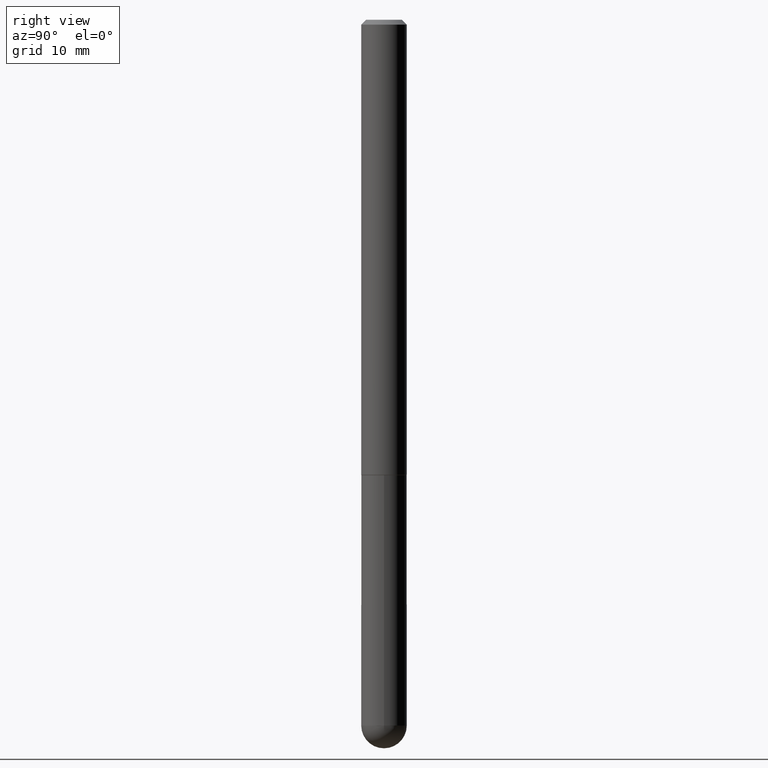
[diagram: clean part render]
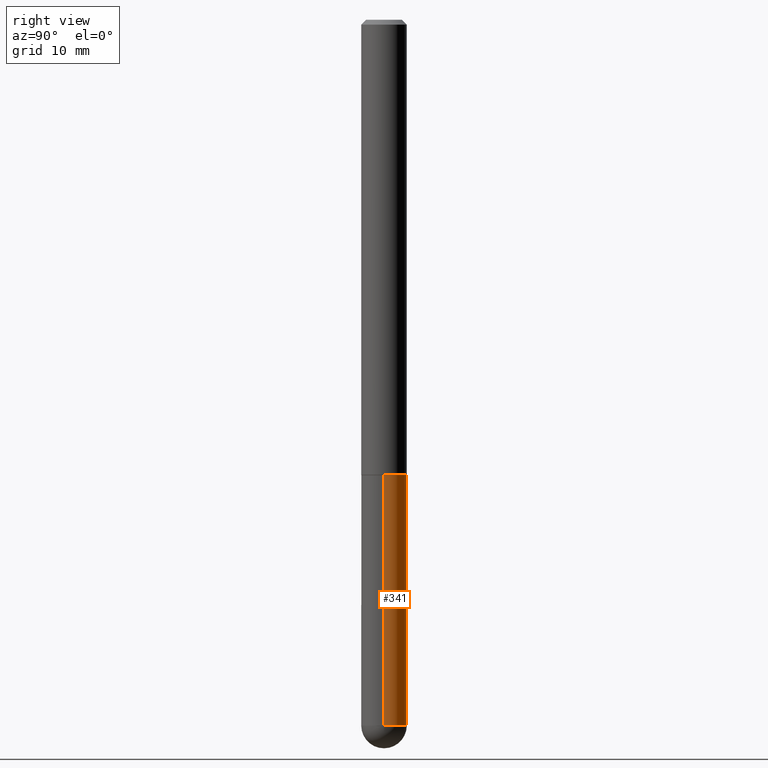
[diagram: same view with one face highlighted and labeled with its STEP entity id]
A machine part, right view. The second image highlights one B-rep face of the part: STEP entity #341.
In plain terms, the highlighted cylindrical surface (edge-blend (fillet) strip) has radius 2.3812 mm, axis along (-0, 0, 1).
Its self-contained STEP definition (entity closure, byte-faithful):
#12 = VERTEX_POINT ( 'NONE', #243 ) ;
#14 = ORIENTED_EDGE ( 'NONE', *, *, #283, .T. ) ;
#19 = LINE ( 'NONE', #112, #249 ) ;
#22 = EDGE_CURVE ( 'NONE', #77, #136, #345, .T. ) ;
#60 = DIRECTION ( 'NONE',  ( -2.445468806185136877E-29, 3.491481338843145188E-15, 1.000000000000000000 ) ) ;
#63 = LINE ( 'NONE', #379, #207 ) ;
#77 = VERTEX_POINT ( 'NONE', #364 ) ;
#95 = ORIENTED_EDGE ( 'NONE', *, *, #298, .T. ) ;
#98 = CARTESIAN_POINT ( 'NONE',  ( 7.107143717975553234E-29, -1.014711764101289221E-14, -2.906250000000000000 ) ) ;
#112 = CARTESIAN_POINT ( 'NONE',  ( -0.09374999999999998612, 6.661338147750938256E-16, -4.611501647113973295E-30 ) ) ;
#114 = CARTESIAN_POINT ( 'NONE',  ( -0.09375000000000001388, -7.680688760896801533E-15, -1.875000000000000000 ) ) ;
#115 = EDGE_CURVE ( 'NONE', #326, #136, #19, .T. ) ;
#135 = CARTESIAN_POINT ( 'NONE',  ( 7.107143717975553234E-29, -1.014711764101289221E-14, -2.906250000000000000 ) ) ;
#136 = VERTEX_POINT ( 'NONE', #114 ) ;
#140 = ORIENTED_EDGE ( 'NONE', *, *, #115, .T. ) ;
#142 = AXIS2_PLACEMENT_3D ( 'NONE', #135, #161, #385 ) ;
#150 = DIRECTION ( 'NONE',  ( -2.445468806185136877E-29, 3.491481338843145188E-15, 1.000000000000000000 ) ) ;
#157 = AXIS2_PLACEMENT_3D ( 'NONE', #351, #285, #294 ) ;
#161 = DIRECTION ( 'NONE',  ( -2.445468806185136597E-29, 3.491481338843145583E-15, 1.000000000000000000 ) ) ;
#166 = EDGE_CURVE ( 'NONE', #322, #77, #63, .T. ) ;
#172 = ORIENTED_EDGE ( 'NONE', *, *, #166, .F. ) ;
#178 = DIRECTION ( 'NONE',  ( -2.445468806185136597E-29, 3.491481338843145583E-15, 1.000000000000000000 ) ) ;
#199 = ORIENTED_EDGE ( 'NONE', *, *, #22, .F. ) ;
#203 = DIRECTION ( 'NONE',  ( -2.445468806185136597E-29, 3.491481338843145583E-15, 1.000000000000000000 ) ) ;
#207 = VECTOR ( 'NONE', #60, 39.37007874015748143 ) ;
#216 = CARTESIAN_POINT ( 'NONE',  ( 4.585254011597131119E-29, -6.546527510330898707E-15, -1.875000000000000000 ) ) ;
#225 = FACE_OUTER_BOUND ( 'NONE', #295, .T. ) ;
#230 = DIRECTION ( 'NONE',  ( 1.000000000000000000, -6.982962677686263555E-15, 0.000000000000000000 ) ) ;
#243 = CARTESIAN_POINT ( 'NONE',  ( 6.546527510331577127E-16, 0.09374999999998974431, -2.906250000000000888 ) ) ;
#249 = VECTOR ( 'NONE', #150, 39.37007874015748143 ) ;
#283 = EDGE_CURVE ( 'NONE', #12, #326, #383, .T. ) ;
#285 = DIRECTION ( 'NONE',  ( -2.445468806185136597E-29, 3.491481338843145583E-15, 1.000000000000000000 ) ) ;
#290 = CYLINDRICAL_SURFACE ( 'NONE', #157, 0.09374999999999998612 ) ;
#294 = DIRECTION ( 'NONE',  ( 1.000000000000000000, -6.982962677686266711E-15, 4.876176775795935793E-29 ) ) ;
#295 = EDGE_LOOP ( 'NONE', ( #14, #140, #199, #172, #95 ) ) ;
#298 = EDGE_CURVE ( 'NONE', #322, #12, #376, .T. ) ;
#307 = DIRECTION ( 'NONE',  ( 1.000000000000000000, -6.982962677686261189E-15, 0.000000000000000000 ) ) ;
#314 = AXIS2_PLACEMENT_3D ( 'NONE', #216, #178, #307 ) ;
#318 = CARTESIAN_POINT ( 'NONE',  ( 0.09374999999999998612, -9.001475326704983750E-15, -2.906250000000000000 ) ) ;
#322 = VERTEX_POINT ( 'NONE', #318 ) ;
#326 = VERTEX_POINT ( 'NONE', #387 ) ;
#341 = ADVANCED_FACE ( 'NONE', ( #225 ), #290, .T. ) ;
#345 = CIRCLE ( 'NONE', #314, 0.09375000000000001388 ) ;
#351 = CARTESIAN_POINT ( 'NONE',  ( 0.000000000000000000, 0.000000000000000000, 0.000000000000000000 ) ) ;
#364 = CARTESIAN_POINT ( 'NONE',  ( 0.09375000000000001388, -7.201180261363985422E-15, -1.875000000000000000 ) ) ;
#376 = CIRCLE ( 'NONE', #407, 0.09374999999999998612 ) ;
#379 = CARTESIAN_POINT ( 'NONE',  ( 0.09374999999999998612, -6.546527510330874055E-16, 4.571415727308689105E-30 ) ) ;
#383 = CIRCLE ( 'NONE', #142, 0.09374999999999998612 ) ;
#385 = DIRECTION ( 'NONE',  ( 1.000000000000000000, -6.982962677686263555E-15, 0.000000000000000000 ) ) ;
#387 = CARTESIAN_POINT ( 'NONE',  ( -0.09374999999999998612, -7.680688760896803110E-15, -2.906250000000000000 ) ) ;
#407 = AXIS2_PLACEMENT_3D ( 'NONE', #98, #203, #230 ) ;